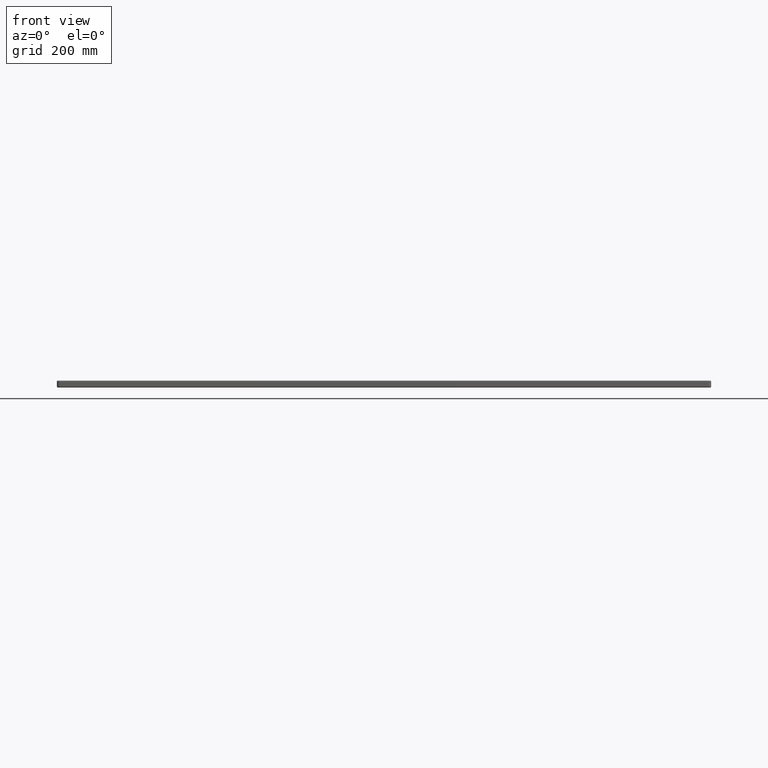
[diagram: clean part render]
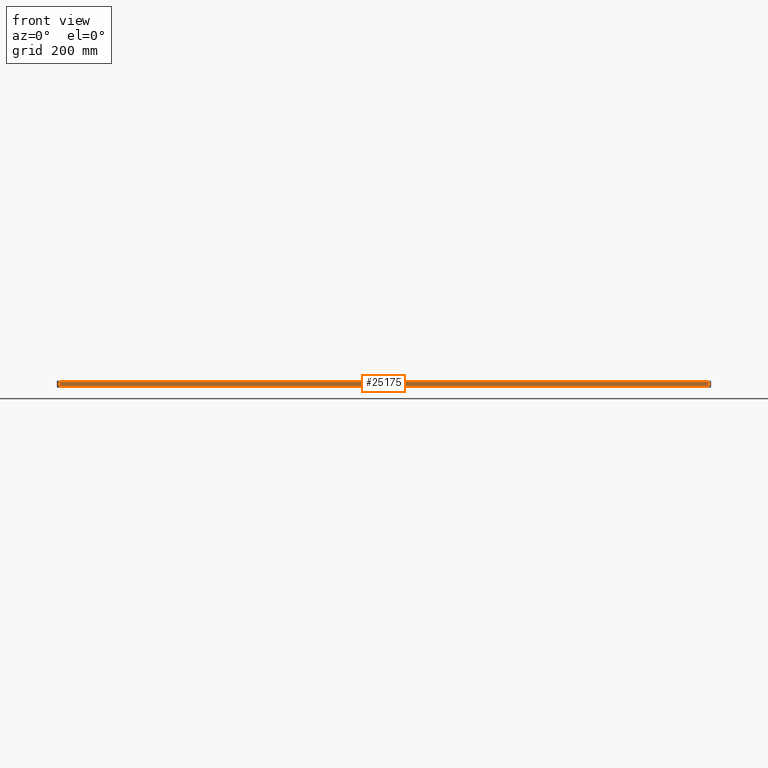
[diagram: same view with one face highlighted and labeled with its STEP entity id]
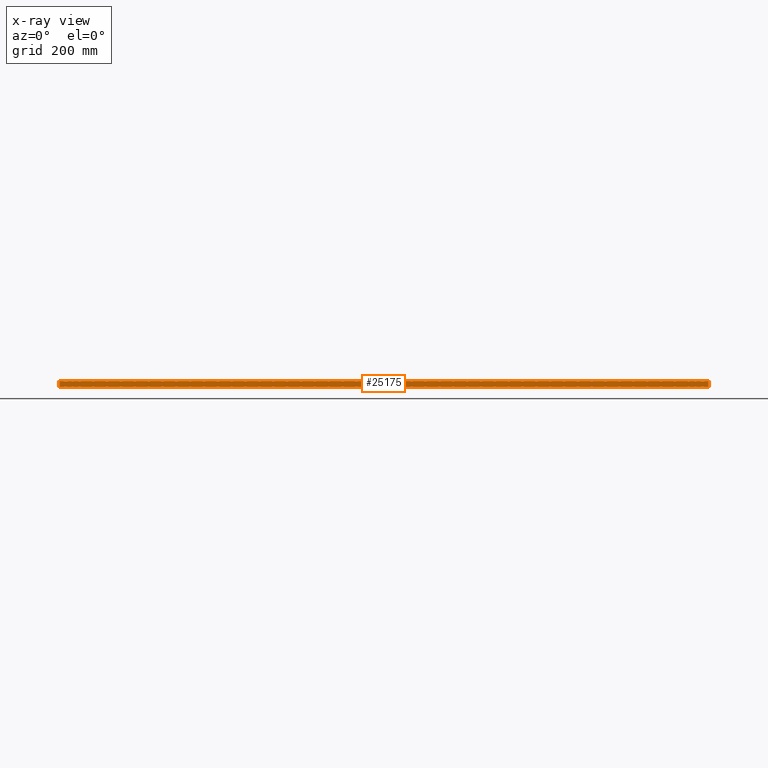
[diagram: x-ray of the same camera — body ghosted, the highlighted face saturated]
A machine part, front view. The second image highlights one B-rep face of the part: STEP entity #25175.
The next image is the same camera in x-ray: the body ghosted, the highlighted face saturated — about 0% of this face is hidden behind the body in this view.
In plain terms, the highlighted planar face has unit normal (0, -1, 0).
Its self-contained STEP definition (entity closure, byte-faithful):
#3052 = LINE ( 'NONE', #26580, #77861 ) ;
#4499 = CARTESIAN_POINT ( 'NONE',  ( 4.999999999999999100, 0.0000000000000000000, -11.00000000000000000 ) ) ;
#9257 = CARTESIAN_POINT ( 'NONE',  ( 1194.999999999999800, 0.0000000000000000000, -11.00000000000000000 ) ) ;
#11876 = DIRECTION ( 'NONE',  ( -1.000000000000000000, -0.0000000000000000000, 0.0000000000000000000 ) ) ;
#12239 = CARTESIAN_POINT ( 'NONE',  ( 1194.999999999999800, 0.0000000000000000000, -13.00000000000000000 ) ) ;
#12787 = DIRECTION ( 'NONE',  ( -0.0000000000000000000, 0.0000000000000000000, 1.000000000000000000 ) ) ;
#13122 = VERTEX_POINT ( 'NONE', #9257 ) ;
#20810 = ORIENTED_EDGE ( 'NONE', *, *, #41895, .T. ) ;
#22149 = EDGE_LOOP ( 'NONE', ( #69178, #53325, #20810, #75638 ) ) ;
#22659 = CARTESIAN_POINT ( 'NONE',  ( 1194.999999999999800, 0.0000000000000000000, -2.000000000000000000 ) ) ;
#23908 = VERTEX_POINT ( 'NONE', #4499 ) ;
#25175 = ADVANCED_FACE ( 'NONE', ( #75294 ), #37059, .T. ) ;
#26580 = CARTESIAN_POINT ( 'NONE',  ( 4.999999999999999100, 0.0000000000000000000, -13.00000000000000000 ) ) ;
#29646 = CARTESIAN_POINT ( 'NONE',  ( 4.999999999999999100, 0.0000000000000000000, -2.000000000000000000 ) ) ;
#31451 = CARTESIAN_POINT ( 'NONE',  ( 4.999999999999999100, 0.0000000000000000000, -2.000000000000000000 ) ) ;
#32728 = AXIS2_PLACEMENT_3D ( 'NONE', #55750, #43101, #49154 ) ;
#33746 = DIRECTION ( 'NONE',  ( -0.0000000000000000000, -0.0000000000000000000, -1.000000000000000000 ) ) ;
#35705 = CARTESIAN_POINT ( 'NONE',  ( 0.0000000000000000000, 0.0000000000000000000, -11.00000000000000000 ) ) ;
#37059 = PLANE ( 'NONE',  #32728 ) ;
#41895 = EDGE_CURVE ( 'NONE', #61418, #23908, #3052, .T. ) ;
#42166 = LINE ( 'NONE', #31451, #57853 ) ;
#43101 = DIRECTION ( 'NONE',  ( 0.0000000000000000000, -1.000000000000000000, 0.0000000000000000000 ) ) ;
#44748 = EDGE_CURVE ( 'NONE', #23908, #13122, #46252, .T. ) ;
#46252 = LINE ( 'NONE', #35705, #81591 ) ;
#49154 = DIRECTION ( 'NONE',  ( 0.0000000000000000000, -0.0000000000000000000, -1.000000000000000000 ) ) ;
#53325 = ORIENTED_EDGE ( 'NONE', *, *, #62128, .T. ) ;
#54405 = LINE ( 'NONE', #12239, #71187 ) ;
#55750 = CARTESIAN_POINT ( 'NONE',  ( 0.0000000000000000000, 0.0000000000000000000, -13.00000000000000000 ) ) ;
#57853 = VECTOR ( 'NONE', #11876, 1000.000000000000000 ) ;
#61418 = VERTEX_POINT ( 'NONE', #29646 ) ;
#62128 = EDGE_CURVE ( 'NONE', #68036, #61418, #42166, .T. ) ;
#62642 = DIRECTION ( 'NONE',  ( 1.000000000000000000, 0.0000000000000000000, 0.0000000000000000000 ) ) ;
#68036 = VERTEX_POINT ( 'NONE', #22659 ) ;
#69178 = ORIENTED_EDGE ( 'NONE', *, *, #71293, .T. ) ;
#71187 = VECTOR ( 'NONE', #12787, 1000.000000000000000 ) ;
#71293 = EDGE_CURVE ( 'NONE', #13122, #68036, #54405, .T. ) ;
#75294 = FACE_OUTER_BOUND ( 'NONE', #22149, .T. ) ;
#75638 = ORIENTED_EDGE ( 'NONE', *, *, #44748, .T. ) ;
#77861 = VECTOR ( 'NONE', #33746, 1000.000000000000000 ) ;
#81591 = VECTOR ( 'NONE', #62642, 1000.000000000000000 ) ;